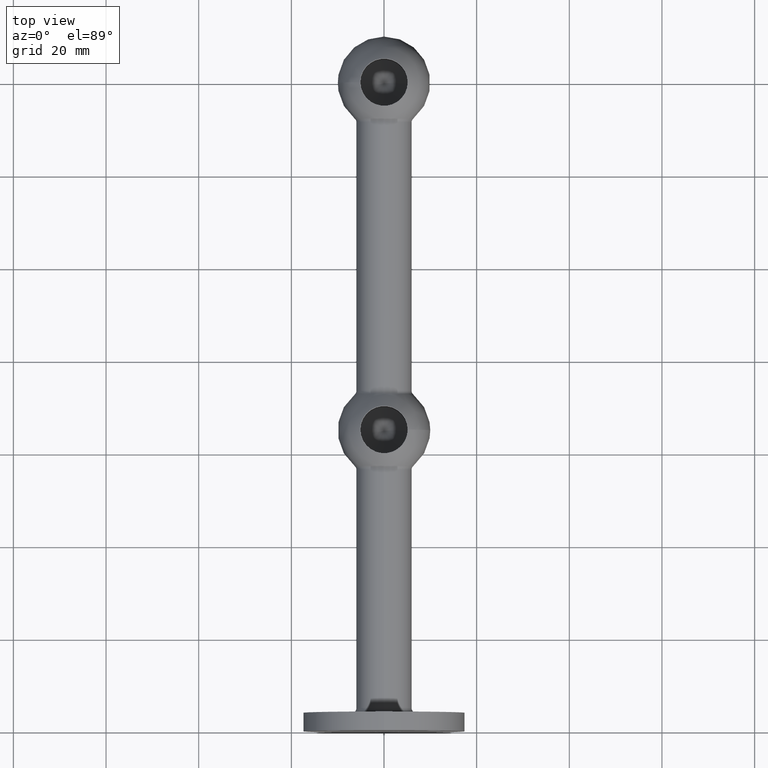
[diagram: clean part render]
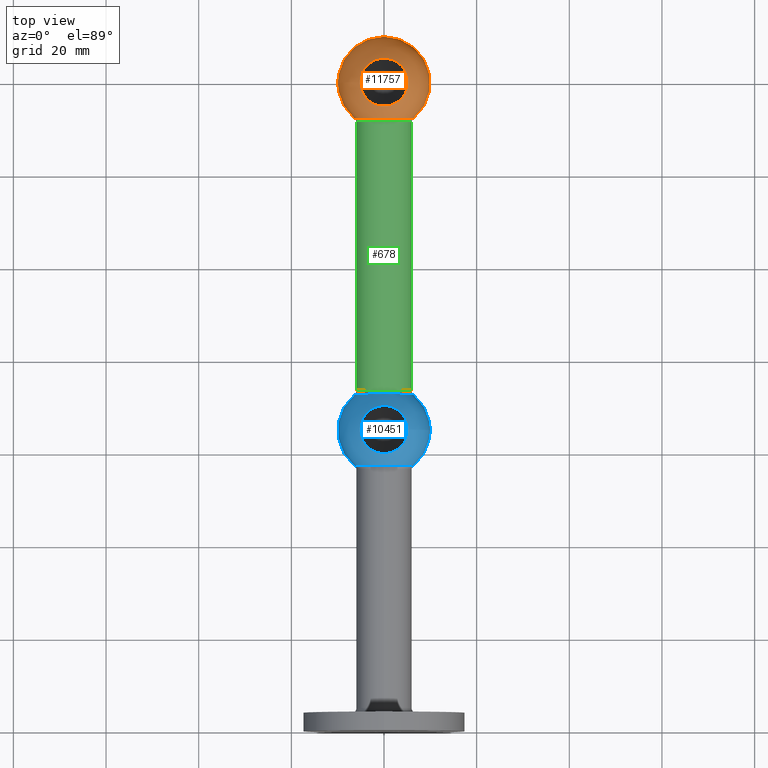
[diagram: same view with three faces highlighted in distinct colors, each labeled with its STEP entity id]
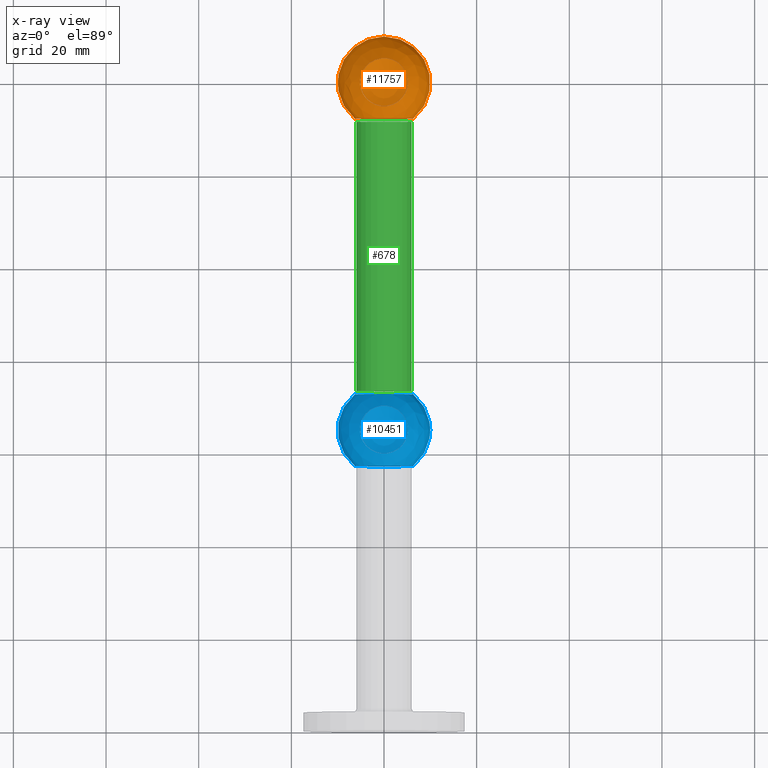
[diagram: x-ray of the same camera — body ghosted, the three highlighted faces saturated]
A machine part, top view with three faces highlighted in distinct colors.
The next image is the same camera in x-ray (body ghosted, the three faces saturated) — at least one of them is partly hidden behind the body in this view.
Their STEP definitions:

[orange] entity #11757 — the highlighted spherical surface has radius 10 mm.
#954 = FACE_BOUND ( 'NONE', #9633, .T. ) ;
#992 = AXIS2_PLACEMENT_3D ( 'NONE', #5679, #9598, #4752 ) ;
#1142 = DIRECTION ( 'NONE',  ( -0.000000000000000000, -0.000000000000000000, -1.000000000000000000 ) ) ;
#1187 = CARTESIAN_POINT ( 'NONE',  ( 0.000000000000000000, 139.9999999999999716, 0.000000000000000000 ) ) ;
#2771 = AXIS2_PLACEMENT_3D ( 'NONE', #1187, #1142, #10801 ) ;
#2904 = SPHERICAL_SURFACE ( 'NONE', #2771, 10.00000000000002309 ) ;
#3365 = VERTEX_POINT ( 'NONE', #4489 ) ;
#3556 = EDGE_CURVE ( 'NONE', #3365, #3365, #3678, .T. ) ;
#3678 = CIRCLE ( 'NONE', #4899, 5.185339102682972268 ) ;
#4489 = CARTESIAN_POINT ( 'NONE',  ( -5.185339102682972268, 139.9999999999999716, 8.550570647049665851 ) ) ;
#4752 = DIRECTION ( 'NONE',  ( 0.000000000000000000, 0.000000000000000000, 1.000000000000000000 ) ) ;
#4899 = AXIS2_PLACEMENT_3D ( 'NONE', #11738, #7691, #6690 ) ;
#5528 = ORIENTED_EDGE ( 'NONE', *, *, #7950, .T. ) ;
#5679 = CARTESIAN_POINT ( 'NONE',  ( 0.000000000000000000, 132.2861078416012788, 0.000000000000000000 ) ) ;
#6690 = DIRECTION ( 'NONE',  ( -1.000000000000000000, 0.000000000000000000, 0.000000000000000000 ) ) ;
#6971 = VERTEX_POINT ( 'NONE', #8343 ) ;
#7691 = DIRECTION ( 'NONE',  ( -0.000000000000000000, -0.000000000000000000, -1.000000000000000000 ) ) ;
#7950 = EDGE_CURVE ( 'NONE', #6971, #6971, #9031, .T. ) ;
#8343 = CARTESIAN_POINT ( 'NONE',  ( 0.000000000000000000, 132.2861078416012788, 6.363636363636367754 ) ) ;
#9031 = CIRCLE ( 'NONE', #992, 6.363636363636367754 ) ;
#9598 = DIRECTION ( 'NONE',  ( 0.000000000000000000, 1.000000000000000000, 0.000000000000000000 ) ) ;
#9633 = EDGE_LOOP ( 'NONE', ( #11066 ) ) ;
#10801 = DIRECTION ( 'NONE',  ( -1.000000000000000000, 0.000000000000000000, 0.000000000000000000 ) ) ;
#10825 = FACE_OUTER_BOUND ( 'NONE', #10922, .T. ) ;
#10922 = EDGE_LOOP ( 'NONE', ( #5528 ) ) ;
#11066 = ORIENTED_EDGE ( 'NONE', *, *, #3556, .T. ) ;
#11738 = CARTESIAN_POINT ( 'NONE',  ( 0.000000000000000000, 139.9999999999999716, 8.550570647049665851 ) ) ;
#11757 = ADVANCED_FACE ( 'NONE', ( #954, #10825 ), #2904, .T. ) ;

[blue] entity #10451 — the highlighted spherical surface has radius 10 mm.
#18 = CARTESIAN_POINT ( 'NONE',  ( 0.000000000000000000, 65.00000000000000000, 0.000000000000000000 ) ) ;
#46 = ORIENTED_EDGE ( 'NONE', *, *, #4685, .T. ) ;
#347 = AXIS2_PLACEMENT_3D ( 'NONE', #890, #7642, #1840 ) ;
#890 = CARTESIAN_POINT ( 'NONE',  ( 0.000000000000000000, 57.28610784160130720, 0.000000000000000000 ) ) ;
#895 = AXIS2_PLACEMENT_3D ( 'NONE', #1910, #9750, #11682 ) ;
#1018 = DIRECTION ( 'NONE',  ( 0.000000000000000000, 0.000000000000000000, 1.000000000000000000 ) ) ;
#1577 = CARTESIAN_POINT ( 'NONE',  ( -5.185339102682990031, 65.00000000000000000, 8.550570647049630324 ) ) ;
#1840 = DIRECTION ( 'NONE',  ( 0.000000000000000000, 0.000000000000000000, 1.000000000000000000 ) ) ;
#1865 = CIRCLE ( 'NONE', #895, 5.185339102682990031 ) ;
#1910 = CARTESIAN_POINT ( 'NONE',  ( 0.000000000000000000, 65.00000000000000000, 8.550570647049630324 ) ) ;
#1985 = VERTEX_POINT ( 'NONE', #11209 ) ;
#2439 = VERTEX_POINT ( 'NONE', #1577 ) ;
#2928 = FACE_OUTER_BOUND ( 'NONE', #11030, .T. ) ;
#2969 = EDGE_CURVE ( 'NONE', #6663, #6663, #10668, .T. ) ;
#3247 = CIRCLE ( 'NONE', #347, 6.363636363636364202 ) ;
#3490 = CARTESIAN_POINT ( 'NONE',  ( 0.000000000000000000, 72.71389215839870701, -6.363636363636355320 ) ) ;
#3911 = EDGE_CURVE ( 'NONE', #2439, #2439, #1865, .T. ) ;
#4685 = EDGE_CURVE ( 'NONE', #1985, #1985, #3247, .T. ) ;
#4714 = ORIENTED_EDGE ( 'NONE', *, *, #3911, .T. ) ;
#6397 = SPHERICAL_SURFACE ( 'NONE', #7868, 9.999999999999998224 ) ;
#6442 = ORIENTED_EDGE ( 'NONE', *, *, #2969, .T. ) ;
#6483 = EDGE_LOOP ( 'NONE', ( #4714 ) ) ;
#6663 = VERTEX_POINT ( 'NONE', #3490 ) ;
#7469 = FACE_OUTER_BOUND ( 'NONE', #10242, .T. ) ;
#7576 = CARTESIAN_POINT ( 'NONE',  ( 0.000000000000000000, 72.71389215839870701, 0.000000000000000000 ) ) ;
#7642 = DIRECTION ( 'NONE',  ( 0.000000000000000000, 1.000000000000000000, 0.000000000000000000 ) ) ;
#7868 = AXIS2_PLACEMENT_3D ( 'NONE', #18, #1018, #8782 ) ;
#7930 = FACE_BOUND ( 'NONE', #6483, .T. ) ;
#8573 = AXIS2_PLACEMENT_3D ( 'NONE', #7576, #11629, #11584 ) ;
#8782 = DIRECTION ( 'NONE',  ( 1.000000000000000000, 0.000000000000000000, 0.000000000000000000 ) ) ;
#9750 = DIRECTION ( 'NONE',  ( -0.000000000000000000, -0.000000000000000000, -1.000000000000000000 ) ) ;
#10242 = EDGE_LOOP ( 'NONE', ( #46 ) ) ;
#10451 = ADVANCED_FACE ( 'NONE', ( #2928, #7930, #7469 ), #6397, .T. ) ;
#10668 = CIRCLE ( 'NONE', #8573, 6.363636363636355320 ) ;
#11030 = EDGE_LOOP ( 'NONE', ( #6442 ) ) ;
#11209 = CARTESIAN_POINT ( 'NONE',  ( 0.000000000000000000, 57.28610784160130720, 6.363636363636364202 ) ) ;
#11584 = DIRECTION ( 'NONE',  ( 0.000000000000000000, 0.000000000000000000, -1.000000000000000000 ) ) ;
#11629 = DIRECTION ( 'NONE',  ( -0.000000000000000000, -1.000000000000000000, -0.000000000000000000 ) ) ;
#11682 = DIRECTION ( 'NONE',  ( -1.000000000000000000, 0.000000000000000000, 0.000000000000000000 ) ) ;

[green] entity #678 — the highlighted cylindrical surface (bore or boss wall) has radius 6 mm, axis along (0, -1, 0).
#678 = ADVANCED_FACE ( 'NONE', ( #3260, #5049 ), #7030, .T. ) ;
#1621 = EDGE_CURVE ( 'NONE', #8654, #8654, #8992, .T. ) ;
#2303 = VERTEX_POINT ( 'NONE', #6298 ) ;
#3249 = CIRCLE ( 'NONE', #8052, 6.000000000000004441 ) ;
#3260 = FACE_OUTER_BOUND ( 'NONE', #8527, .T. ) ;
#3580 = CARTESIAN_POINT ( 'NONE',  ( 0.000000000000000000, 150.0020000000000380, 0.000000000000000000 ) ) ;
#4531 = DIRECTION ( 'NONE',  ( 0.000000000000000000, 0.000000000000000000, -1.000000000000000000 ) ) ;
#4738 = AXIS2_PLACEMENT_3D ( 'NONE', #4866, #11688, #6804 ) ;
#4866 = CARTESIAN_POINT ( 'NONE',  ( 0.000000000000000000, 73.48528137423859619, 0.000000000000000000 ) ) ;
#5049 = FACE_OUTER_BOUND ( 'NONE', #11042, .T. ) ;
#5257 = ORIENTED_EDGE ( 'NONE', *, *, #10711, .T. ) ;
#5540 = ORIENTED_EDGE ( 'NONE', *, *, #1621, .T. ) ;
#6298 = CARTESIAN_POINT ( 'NONE',  ( 0.000000000000000000, 131.5147186257613896, 6.000000000000004441 ) ) ;
#6804 = DIRECTION ( 'NONE',  ( 0.000000000000000000, 0.000000000000000000, -1.000000000000000000 ) ) ;
#7030 = CYLINDRICAL_SURFACE ( 'NONE', #10617, 6.000000000000004441 ) ;
#7036 = CARTESIAN_POINT ( 'NONE',  ( 0.000000000000000000, 73.48528137423859619, -6.000000000000004441 ) ) ;
#7587 = DIRECTION ( 'NONE',  ( -0.000000000000000000, -1.000000000000000000, -0.000000000000000000 ) ) ;
#8052 = AXIS2_PLACEMENT_3D ( 'NONE', #11429, #7587, #10537 ) ;
#8527 = EDGE_LOOP ( 'NONE', ( #5540 ) ) ;
#8654 = VERTEX_POINT ( 'NONE', #7036 ) ;
#8992 = CIRCLE ( 'NONE', #4738, 6.000000000000004441 ) ;
#10537 = DIRECTION ( 'NONE',  ( 0.000000000000000000, 0.000000000000000000, 1.000000000000000000 ) ) ;
#10617 = AXIS2_PLACEMENT_3D ( 'NONE', #3580, #11427, #4531 ) ;
#10711 = EDGE_CURVE ( 'NONE', #2303, #2303, #3249, .T. ) ;
#11042 = EDGE_LOOP ( 'NONE', ( #5257 ) ) ;
#11427 = DIRECTION ( 'NONE',  ( 0.000000000000000000, -1.000000000000000000, 0.000000000000000000 ) ) ;
#11429 = CARTESIAN_POINT ( 'NONE',  ( 0.000000000000000000, 131.5147186257613896, 0.000000000000000000 ) ) ;
#11688 = DIRECTION ( 'NONE',  ( 0.000000000000000000, 1.000000000000000000, 0.000000000000000000 ) ) ;